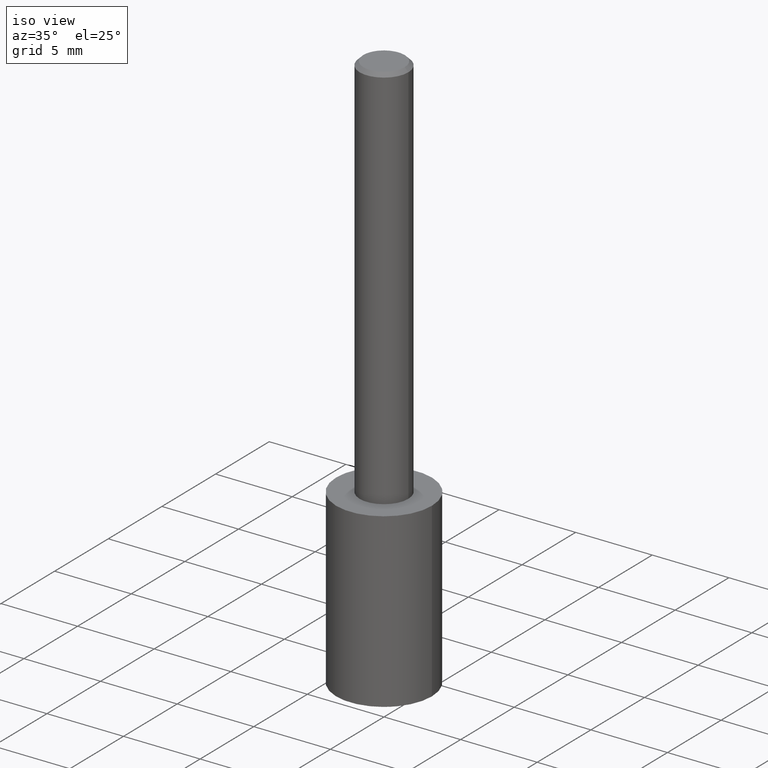
[diagram: clean part render]
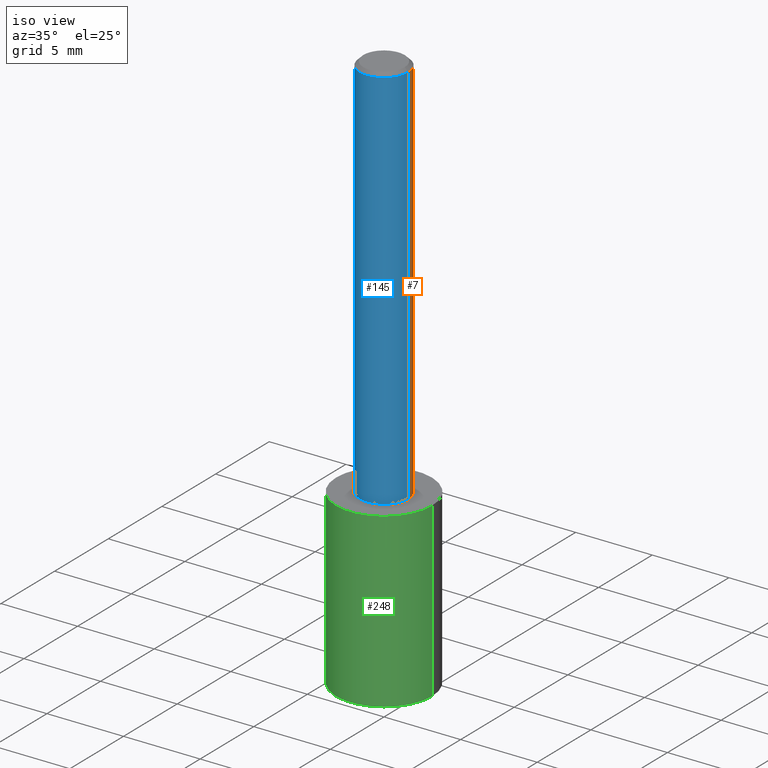
[diagram: same view with three faces highlighted in distinct colors, each labeled with its STEP entity id]
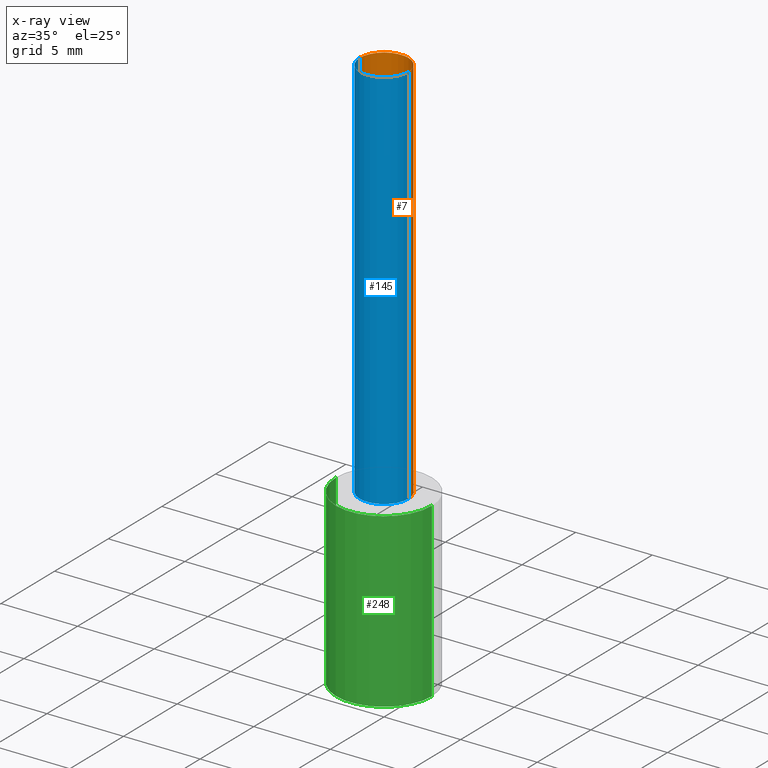
[diagram: x-ray of the same camera — body ghosted, the three highlighted faces saturated]
A machine part, iso view with three faces highlighted in distinct colors.
The next image is the same camera in x-ray (body ghosted, the three faces saturated) — at least one of them is partly hidden behind the body in this view.
Their STEP definitions:

[orange] entity #7 — the highlighted cylindrical surface (edge-blend (fillet) strip) has radius 1.5875 mm, axis along (-0, 0, 1).
#2 = ORIENTED_EDGE ( 'NONE', *, *, #279, .F. ) ;
#7 = ADVANCED_FACE ( 'NONE', ( #118 ), #89, .T. ) ;
#10 = AXIS2_PLACEMENT_3D ( 'NONE', #170, #66, #91 ) ;
#21 = LINE ( 'NONE', #228, #95 ) ;
#26 = CARTESIAN_POINT ( 'NONE',  ( -0.06250000000000012490, -1.318017778347335489E-15, -1.000000000000000222 ) ) ;
#27 = LINE ( 'NONE', #241, #48 ) ;
#32 = EDGE_LOOP ( 'NONE', ( #297, #78, #188, #2 ) ) ;
#48 = VECTOR ( 'NONE', #209, 39.37007874015748143 ) ;
#64 = CIRCLE ( 'NONE', #197, 0.06250000000000012490 ) ;
#66 = DIRECTION ( 'NONE',  ( -2.445468806185136597E-29, 3.491481338843145583E-15, 1.000000000000000000 ) ) ;
#71 = CARTESIAN_POINT ( 'NONE',  ( -0.06250000000000000000, -1.318017778347336672E-15, -0.009375000000000060368 ) ) ;
#78 = ORIENTED_EDGE ( 'NONE', *, *, #270, .T. ) ;
#89 = CYLINDRICAL_SURFACE ( 'NONE', #10, 0.06250000000000006939 ) ;
#91 = DIRECTION ( 'NONE',  ( 1.000000000000000000, -6.982962677686266711E-15, 4.876176775795935793E-29 ) ) ;
#95 = VECTOR ( 'NONE', #199, 39.37007874015748143 ) ;
#97 = DIRECTION ( 'NONE',  ( 1.000000000000000000, -6.982962677686266711E-15, 0.000000000000000000 ) ) ;
#103 = VERTEX_POINT ( 'NONE', #275 ) ;
#118 = FACE_OUTER_BOUND ( 'NONE', #32, .T. ) ;
#123 = AXIS2_PLACEMENT_3D ( 'NONE', #152, #125, #97 ) ;
#125 = DIRECTION ( 'NONE',  ( -2.445468806185136597E-29, 3.491481338843145583E-15, 1.000000000000000000 ) ) ;
#131 = CARTESIAN_POINT ( 'NONE',  ( 2.445468806185137438E-29, -3.491481338843146371E-15, -1.000000000000000222 ) ) ;
#133 = DIRECTION ( 'NONE',  ( 1.000000000000000000, -6.982962677686264344E-15, 0.000000000000000000 ) ) ;
#137 = VERTEX_POINT ( 'NONE', #257 ) ;
#152 = CARTESIAN_POINT ( 'NONE',  ( 2.292627005798580186E-31, -3.273263755165470184E-17, -0.009375000000000060368 ) ) ;
#170 = CARTESIAN_POINT ( 'NONE',  ( 0.000000000000000000, 0.000000000000000000, 0.000000000000000000 ) ) ;
#188 = ORIENTED_EDGE ( 'NONE', *, *, #295, .F. ) ;
#197 = AXIS2_PLACEMENT_3D ( 'NONE', #131, #264, #133 ) ;
#199 = DIRECTION ( 'NONE',  ( -2.445468806185136877E-29, 3.491481338843145188E-15, 1.000000000000000000 ) ) ;
#209 = DIRECTION ( 'NONE',  ( -2.445468806185136877E-29, 3.491481338843145188E-15, 1.000000000000000000 ) ) ;
#212 = VERTEX_POINT ( 'NONE', #26 ) ;
#228 = CARTESIAN_POINT ( 'NONE',  ( 0.06250000000000006939, -4.364351673553921624E-16, 3.047610484872463374E-30 ) ) ;
#238 = EDGE_CURVE ( 'NONE', #103, #212, #64, .T. ) ;
#241 = CARTESIAN_POINT ( 'NONE',  ( -0.06250000000000006939, 4.440892098500631092E-16, -3.074334431409319267E-30 ) ) ;
#257 = CARTESIAN_POINT ( 'NONE',  ( 0.06250000000000000000, -4.691678049070463404E-16, -0.009375000000000060368 ) ) ;
#264 = DIRECTION ( 'NONE',  ( -2.445468806185136597E-29, 3.491481338843145583E-15, 1.000000000000000000 ) ) ;
#270 = EDGE_CURVE ( 'NONE', #212, #285, #27, .T. ) ;
#273 = CIRCLE ( 'NONE', #123, 0.06250000000000000000 ) ;
#275 = CARTESIAN_POINT ( 'NONE',  ( 0.06250000000000012490, -3.927916506198539224E-15, -1.000000000000000222 ) ) ;
#279 = EDGE_CURVE ( 'NONE', #103, #137, #21, .T. ) ;
#285 = VERTEX_POINT ( 'NONE', #71 ) ;
#295 = EDGE_CURVE ( 'NONE', #137, #285, #273, .T. ) ;
#297 = ORIENTED_EDGE ( 'NONE', *, *, #238, .T. ) ;

[blue] entity #145 — the highlighted cylindrical surface (edge-blend (fillet) strip) has radius 1.5875 mm, axis along (-0, 0, 1).
#16 = EDGE_CURVE ( 'NONE', #285, #137, #210, .T. ) ;
#19 = CARTESIAN_POINT ( 'NONE',  ( 0.000000000000000000, 0.000000000000000000, 0.000000000000000000 ) ) ;
#21 = LINE ( 'NONE', #228, #95 ) ;
#26 = CARTESIAN_POINT ( 'NONE',  ( -0.06250000000000012490, -1.318017778347335489E-15, -1.000000000000000222 ) ) ;
#27 = LINE ( 'NONE', #241, #48 ) ;
#30 = ORIENTED_EDGE ( 'NONE', *, *, #279, .T. ) ;
#37 = DIRECTION ( 'NONE',  ( -2.445468806185136597E-29, 3.491481338843145583E-15, 1.000000000000000000 ) ) ;
#48 = VECTOR ( 'NONE', #209, 39.37007874015748143 ) ;
#51 = AXIS2_PLACEMENT_3D ( 'NONE', #299, #224, #219 ) ;
#63 = EDGE_CURVE ( 'NONE', #212, #103, #204, .T. ) ;
#71 = CARTESIAN_POINT ( 'NONE',  ( -0.06250000000000000000, -1.318017778347336672E-15, -0.009375000000000060368 ) ) ;
#82 = ORIENTED_EDGE ( 'NONE', *, *, #63, .T. ) ;
#93 = DIRECTION ( 'NONE',  ( -2.445468806185136597E-29, 3.491481338843145583E-15, 1.000000000000000000 ) ) ;
#95 = VECTOR ( 'NONE', #199, 39.37007874015748143 ) ;
#103 = VERTEX_POINT ( 'NONE', #275 ) ;
#126 = DIRECTION ( 'NONE',  ( 1.000000000000000000, -6.982962677686266711E-15, 4.876176775795935793E-29 ) ) ;
#137 = VERTEX_POINT ( 'NONE', #257 ) ;
#145 = ADVANCED_FACE ( 'NONE', ( #263 ), #332, .T. ) ;
#199 = DIRECTION ( 'NONE',  ( -2.445468806185136877E-29, 3.491481338843145188E-15, 1.000000000000000000 ) ) ;
#204 = CIRCLE ( 'NONE', #269, 0.06250000000000012490 ) ;
#209 = DIRECTION ( 'NONE',  ( -2.445468806185136877E-29, 3.491481338843145188E-15, 1.000000000000000000 ) ) ;
#210 = CIRCLE ( 'NONE', #51, 0.06250000000000000000 ) ;
#212 = VERTEX_POINT ( 'NONE', #26 ) ;
#219 = DIRECTION ( 'NONE',  ( 1.000000000000000000, -6.982962677686266711E-15, 0.000000000000000000 ) ) ;
#224 = DIRECTION ( 'NONE',  ( -2.445468806185136597E-29, 3.491481338843145583E-15, 1.000000000000000000 ) ) ;
#228 = CARTESIAN_POINT ( 'NONE',  ( 0.06250000000000006939, -4.364351673553921624E-16, 3.047610484872463374E-30 ) ) ;
#241 = CARTESIAN_POINT ( 'NONE',  ( -0.06250000000000006939, 4.440892098500631092E-16, -3.074334431409319267E-30 ) ) ;
#252 = DIRECTION ( 'NONE',  ( 1.000000000000000000, -6.982962677686264344E-15, 0.000000000000000000 ) ) ;
#257 = CARTESIAN_POINT ( 'NONE',  ( 0.06250000000000000000, -4.691678049070463404E-16, -0.009375000000000060368 ) ) ;
#263 = FACE_OUTER_BOUND ( 'NONE', #312, .T. ) ;
#269 = AXIS2_PLACEMENT_3D ( 'NONE', #331, #37, #252 ) ;
#270 = EDGE_CURVE ( 'NONE', #212, #285, #27, .T. ) ;
#271 = ORIENTED_EDGE ( 'NONE', *, *, #270, .F. ) ;
#275 = CARTESIAN_POINT ( 'NONE',  ( 0.06250000000000012490, -3.927916506198539224E-15, -1.000000000000000222 ) ) ;
#279 = EDGE_CURVE ( 'NONE', #103, #137, #21, .T. ) ;
#285 = VERTEX_POINT ( 'NONE', #71 ) ;
#299 = CARTESIAN_POINT ( 'NONE',  ( 2.292627005798580186E-31, -3.273263755165470184E-17, -0.009375000000000060368 ) ) ;
#312 = EDGE_LOOP ( 'NONE', ( #271, #82, #30, #339 ) ) ;
#317 = AXIS2_PLACEMENT_3D ( 'NONE', #19, #93, #126 ) ;
#331 = CARTESIAN_POINT ( 'NONE',  ( 2.445468806185137438E-29, -3.491481338843146371E-15, -1.000000000000000222 ) ) ;
#332 = CYLINDRICAL_SURFACE ( 'NONE', #317, 0.06250000000000006939 ) ;
#339 = ORIENTED_EDGE ( 'NONE', *, *, #16, .F. ) ;

[green] entity #248 — the highlighted cylindrical surface (partial cylindrical patch) has radius 3.1255 mm, axis along (-0, 0, 1).
#11 = DIRECTION ( 'NONE',  ( -2.445468806185136597E-29, 3.491481338843145583E-15, 1.000000000000000000 ) ) ;
#13 = DIRECTION ( 'NONE',  ( 1.000000000000000000, -6.982962677686263555E-15, 0.000000000000000000 ) ) ;
#22 = CIRCLE ( 'NONE', #136, 0.1230500000000000066 ) ;
#33 = VECTOR ( 'NONE', #256, 39.37007874015748143 ) ;
#42 = CARTESIAN_POINT ( 'NONE',  ( 0.1230500000000000066, -4.350734896332441588E-15, -1.000000000000000222 ) ) ;
#44 = VECTOR ( 'NONE', #84, 39.37007874015748143 ) ;
#47 = EDGE_CURVE ( 'NONE', #130, #132, #192, .T. ) ;
#67 = EDGE_CURVE ( 'NONE', #163, #132, #276, .T. ) ;
#80 = FACE_OUTER_BOUND ( 'NONE', #109, .T. ) ;
#84 = DIRECTION ( 'NONE',  ( -2.445468806185136877E-29, 3.491481338843145188E-15, 1.000000000000000000 ) ) ;
#109 = EDGE_LOOP ( 'NONE', ( #112, #165, #268, #157 ) ) ;
#112 = ORIENTED_EDGE ( 'NONE', *, *, #128, .F. ) ;
#114 = DIRECTION ( 'NONE',  ( 1.000000000000000000, -6.982962677686263555E-15, 0.000000000000000000 ) ) ;
#115 = DIRECTION ( 'NONE',  ( 1.000000000000000000, -6.982962677686268288E-15, 0.000000000000000000 ) ) ;
#121 = CARTESIAN_POINT ( 'NONE',  ( -0.1230500000000000066, -2.617158502490343145E-15, -1.000000000000000222 ) ) ;
#128 = EDGE_CURVE ( 'NONE', #162, #163, #148, .T. ) ;
#130 = VERTEX_POINT ( 'NONE', #226 ) ;
#132 = VERTEX_POINT ( 'NONE', #155 ) ;
#136 = AXIS2_PLACEMENT_3D ( 'NONE', #232, #179, #13 ) ;
#140 = DIRECTION ( 'NONE',  ( -2.445468806185136597E-29, 3.491481338843145583E-15, 1.000000000000000000 ) ) ;
#142 = CARTESIAN_POINT ( 'NONE',  ( 2.445468806185136877E-29, -3.491481338843145977E-15, -1.000000000000000222 ) ) ;
#148 = LINE ( 'NONE', #121, #33 ) ;
#150 = EDGE_CURVE ( 'NONE', #162, #130, #22, .T. ) ;
#155 = CARTESIAN_POINT ( 'NONE',  ( 0.1230500000000000066, -4.350734896332440799E-15, -1.000000000000000222 ) ) ;
#157 = ORIENTED_EDGE ( 'NONE', *, *, #67, .F. ) ;
#162 = VERTEX_POINT ( 'NONE', #198 ) ;
#163 = VERTEX_POINT ( 'NONE', #278 ) ;
#165 = ORIENTED_EDGE ( 'NONE', *, *, #150, .T. ) ;
#173 = CARTESIAN_POINT ( 'NONE',  ( 2.445468806185137438E-29, -3.491481338843146371E-15, -1.000000000000000222 ) ) ;
#174 = AXIS2_PLACEMENT_3D ( 'NONE', #142, #11, #114 ) ;
#175 = CYLINDRICAL_SURFACE ( 'NONE', #287, 0.1230500000000000066 ) ;
#179 = DIRECTION ( 'NONE',  ( -2.445468806185136597E-29, 3.491481338843145583E-15, 1.000000000000000000 ) ) ;
#192 = LINE ( 'NONE', #42, #44 ) ;
#198 = CARTESIAN_POINT ( 'NONE',  ( -0.1230500000000000344, -4.162560914834822950E-15, -1.442620842664027681 ) ) ;
#226 = CARTESIAN_POINT ( 'NONE',  ( 0.1230500000000000344, -5.896137308676920999E-15, -1.442620842664027681 ) ) ;
#232 = CARTESIAN_POINT ( 'NONE',  ( 3.527884269887395579E-29, -5.036883751187626177E-15, -1.442620842664027681 ) ) ;
#248 = ADVANCED_FACE ( 'NONE', ( #80 ), #175, .T. ) ;
#256 = DIRECTION ( 'NONE',  ( -2.445468806185136877E-29, 3.491481338843145188E-15, 1.000000000000000000 ) ) ;
#268 = ORIENTED_EDGE ( 'NONE', *, *, #47, .T. ) ;
#276 = CIRCLE ( 'NONE', #174, 0.1230500000000000066 ) ;
#278 = CARTESIAN_POINT ( 'NONE',  ( -0.1230500000000000066, -3.389859708662582850E-15, -1.000000000000000222 ) ) ;
#287 = AXIS2_PLACEMENT_3D ( 'NONE', #173, #140, #115 ) ;